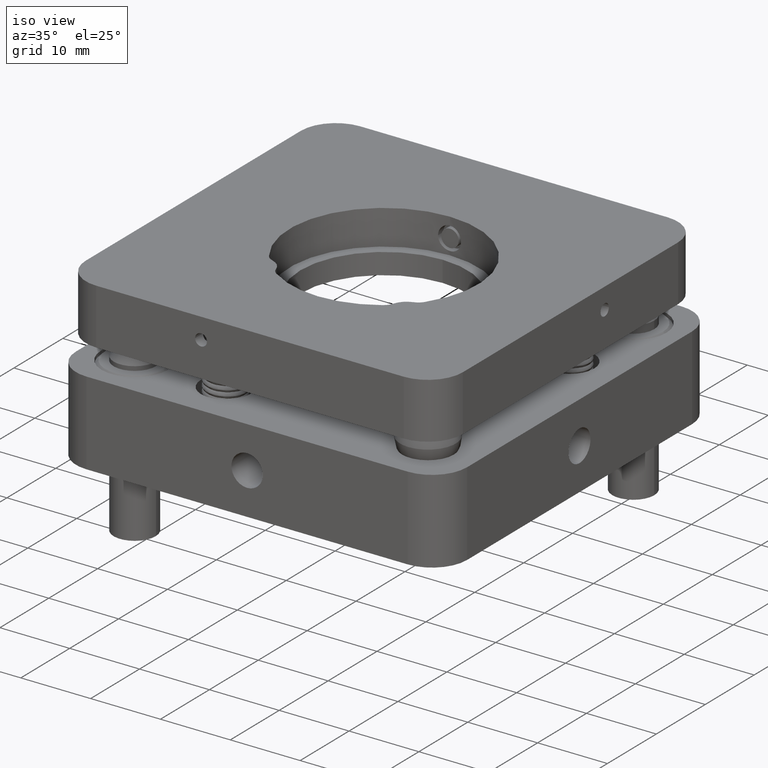
[diagram: clean part render]
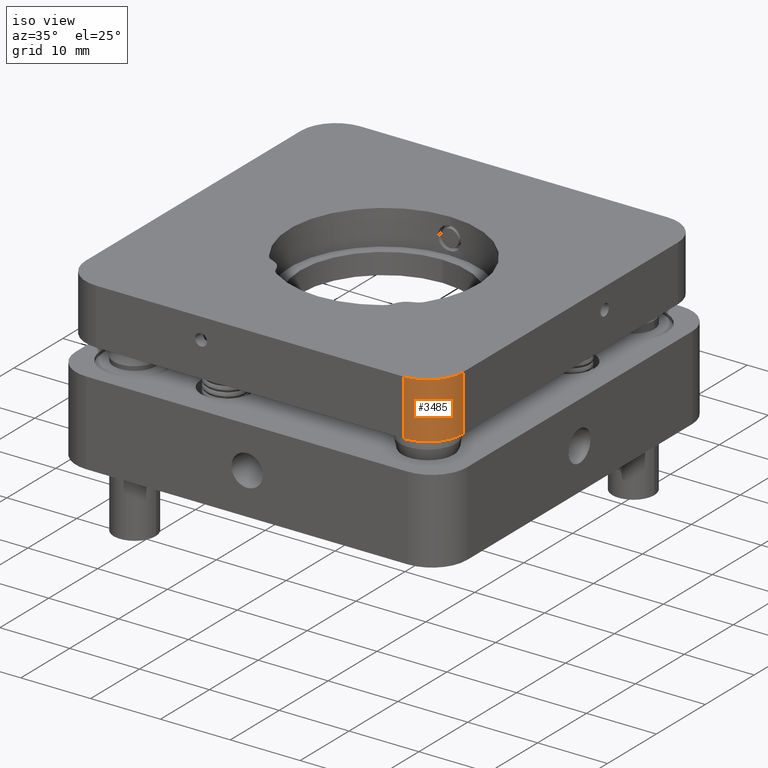
[diagram: same view with one face highlighted and labeled with its STEP entity id]
A machine part, iso view. The second image highlights one B-rep face of the part: STEP entity #3485.
In plain terms, the highlighted cylindrical surface (partial cylindrical patch) has radius 5 mm, axis along (0, 0, -1).
Its self-contained STEP definition (entity closure, byte-faithful):
#211 = VERTEX_POINT ( 'NONE', #13478 ) ;
#704 = AXIS2_PLACEMENT_3D ( 'NONE', #8975, #7319, #2022 ) ;
#831 = AXIS2_PLACEMENT_3D ( 'NONE', #9166, #3683, #9101 ) ;
#2022 = DIRECTION ( 'NONE',  ( 0.000000000000000000, -1.000000000000000000, 0.000000000000000000 ) ) ;
#2559 = CARTESIAN_POINT ( 'NONE',  ( 20.99999999999998224, -26.00000000000000355, 8.000000000000000000 ) ) ;
#3485 = ADVANCED_FACE ( 'NONE', ( #7692 ), #4961, .T. ) ;
#3543 = VERTEX_POINT ( 'NONE', #8270 ) ;
#3683 = DIRECTION ( 'NONE',  ( 0.000000000000000000, 0.000000000000000000, -1.000000000000000000 ) ) ;
#3988 = VECTOR ( 'NONE', #13180, 1000.000000000000000 ) ;
#4072 = CARTESIAN_POINT ( 'NONE',  ( 20.99999999999998579, -21.00000000000000000, 8.000000000000000000 ) ) ;
#4451 = VERTEX_POINT ( 'NONE', #4592 ) ;
#4592 = CARTESIAN_POINT ( 'NONE',  ( 25.99999999999998579, -21.00000000000000355, 8.000000000000000000 ) ) ;
#4961 = CYLINDRICAL_SURFACE ( 'NONE', #704, 5.000000000000000888 ) ;
#5082 = ORIENTED_EDGE ( 'NONE', *, *, #10549, .F. ) ;
#5152 = DIRECTION ( 'NONE',  ( 0.000000000000000000, 0.000000000000000000, -1.000000000000000000 ) ) ;
#5412 = VERTEX_POINT ( 'NONE', #2559 ) ;
#5878 = EDGE_CURVE ( 'NONE', #4451, #3543, #11089, .T. ) ;
#5992 = EDGE_CURVE ( 'NONE', #4451, #5412, #12665, .T. ) ;
#7178 = EDGE_CURVE ( 'NONE', #5412, #211, #8402, .T. ) ;
#7319 = DIRECTION ( 'NONE',  ( 0.000000000000000000, 0.000000000000000000, -1.000000000000000000 ) ) ;
#7692 = FACE_OUTER_BOUND ( 'NONE', #12511, .T. ) ;
#7861 = ORIENTED_EDGE ( 'NONE', *, *, #5992, .T. ) ;
#8270 = CARTESIAN_POINT ( 'NONE',  ( 25.99999999999998579, -21.00000000000000355, -0.000000000000000000 ) ) ;
#8402 = LINE ( 'NONE', #11386, #11668 ) ;
#8457 = DIRECTION ( 'NONE',  ( 0.000000000000000000, -1.000000000000000000, 0.000000000000000000 ) ) ;
#8833 = CIRCLE ( 'NONE', #831, 5.000000000000000888 ) ;
#8975 = CARTESIAN_POINT ( 'NONE',  ( 20.99999999999998579, -21.00000000000000000, 8.000000000000000000 ) ) ;
#9101 = DIRECTION ( 'NONE',  ( 0.000000000000000000, -1.000000000000000000, 0.000000000000000000 ) ) ;
#9166 = CARTESIAN_POINT ( 'NONE',  ( 20.99999999999998579, -21.00000000000000000, -0.000000000000000000 ) ) ;
#9830 = ORIENTED_EDGE ( 'NONE', *, *, #5878, .F. ) ;
#10251 = CARTESIAN_POINT ( 'NONE',  ( 25.99999999999998579, -21.00000000000000355, 8.000000000000000000 ) ) ;
#10427 = AXIS2_PLACEMENT_3D ( 'NONE', #4072, #13728, #8457 ) ;
#10549 = EDGE_CURVE ( 'NONE', #3543, #211, #8833, .T. ) ;
#11089 = LINE ( 'NONE', #10251, #3988 ) ;
#11386 = CARTESIAN_POINT ( 'NONE',  ( 20.99999999999998224, -26.00000000000000355, 8.000000000000000000 ) ) ;
#11447 = ORIENTED_EDGE ( 'NONE', *, *, #7178, .T. ) ;
#11668 = VECTOR ( 'NONE', #5152, 1000.000000000000000 ) ;
#12511 = EDGE_LOOP ( 'NONE', ( #5082, #9830, #7861, #11447 ) ) ;
#12665 = CIRCLE ( 'NONE', #10427, 5.000000000000000888 ) ;
#13180 = DIRECTION ( 'NONE',  ( 0.000000000000000000, 0.000000000000000000, -1.000000000000000000 ) ) ;
#13478 = CARTESIAN_POINT ( 'NONE',  ( 20.99999999999998224, -26.00000000000000355, -0.000000000000000000 ) ) ;
#13728 = DIRECTION ( 'NONE',  ( 0.000000000000000000, 0.000000000000000000, -1.000000000000000000 ) ) ;